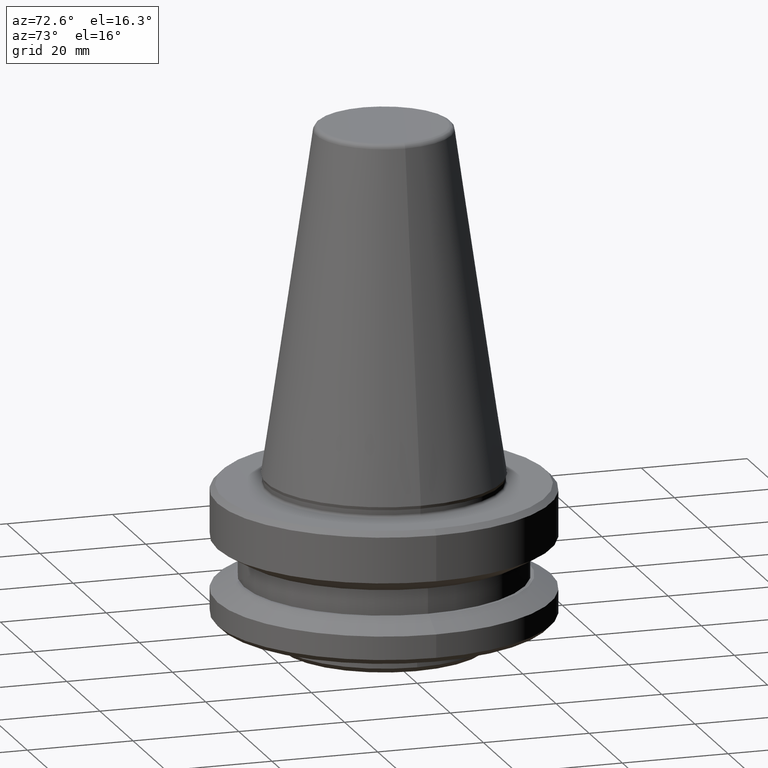
[diagram: clean part render]
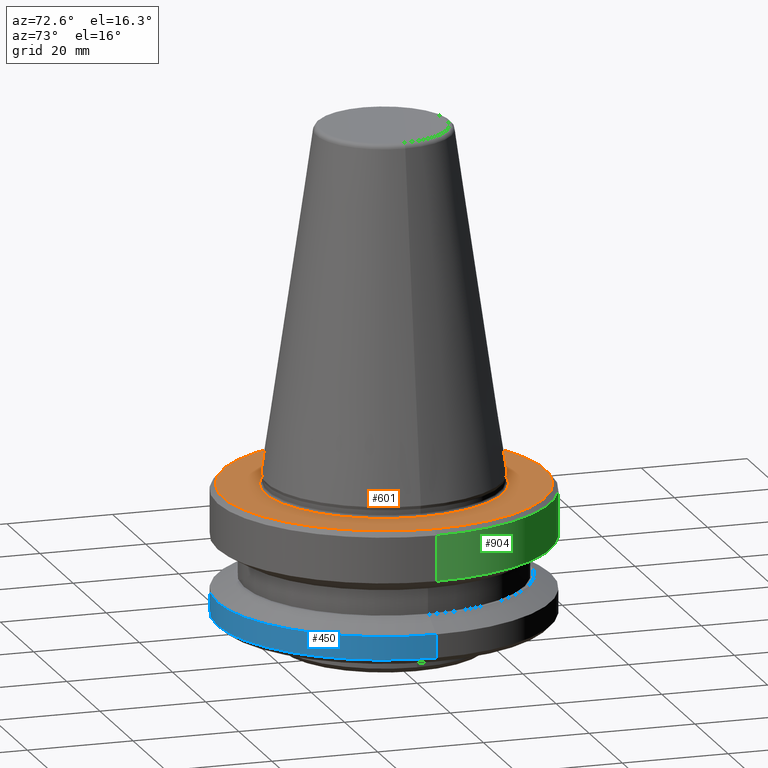
[diagram: same view with three faces highlighted in distinct colors, each labeled with its STEP entity id]
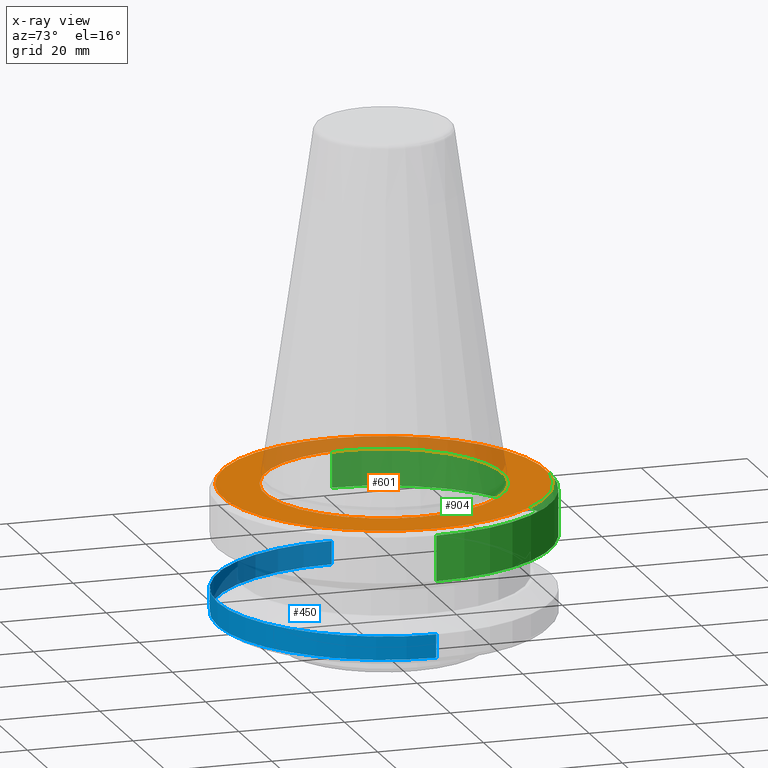
[diagram: x-ray of the same camera — body ghosted, the three highlighted faces saturated]
A machine part, auxiliary view with three faces highlighted in distinct colors.
The next image is the same camera in x-ray (body ghosted, the three faces saturated) — at least one of them is partly hidden behind the body in this view.
Their STEP definitions:

[orange] entity #601 — the highlighted planar face has unit normal (0, 0, -1).
#54 = CIRCLE ( 'NONE', #998, 30.49999999999997200 ) ;
#89 = DIRECTION ( 'NONE',  ( -1.000000000000000000, 0.0000000000000000000, -0.0000000000000000000 ) ) ;
#96 = DIRECTION ( 'NONE',  ( -0.0000000000000000000, -0.0000000000000000000, 1.000000000000000000 ) ) ;
#108 = EDGE_CURVE ( 'NONE', #842, #318, #975, .T. ) ;
#113 = VERTEX_POINT ( 'NONE', #758 ) ;
#134 = CARTESIAN_POINT ( 'NONE',  ( 0.0000000000000000000, 0.0000000000000000000, -2.000000000001556100 ) ) ;
#155 = PLANE ( 'NONE',  #737 ) ;
#164 = ORIENTED_EDGE ( 'NONE', *, *, #108, .F. ) ;
#225 = DIRECTION ( 'NONE',  ( 1.000000000000000000, 0.0000000000000000000, 0.0000000000000000000 ) ) ;
#266 = CARTESIAN_POINT ( 'NONE',  ( 0.0000000000000000000, 0.0000000000000000000, -2.000000000001556100 ) ) ;
#279 = CIRCLE ( 'NONE', #840, 30.49999999999997200 ) ;
#318 = VERTEX_POINT ( 'NONE', #391 ) ;
#330 = DIRECTION ( 'NONE',  ( 1.000000000000000000, 0.0000000000000000000, 0.0000000000000000000 ) ) ;
#387 = EDGE_CURVE ( 'NONE', #318, #842, #882, .T. ) ;
#391 = CARTESIAN_POINT ( 'NONE',  ( 22.49999999999996400, 0.0000000000000000000, -2.000000000001500600 ) ) ;
#422 = DIRECTION ( 'NONE',  ( -0.0000000000000000000, -0.0000000000000000000, 1.000000000000000000 ) ) ;
#458 = ORIENTED_EDGE ( 'NONE', *, *, #673, .T. ) ;
#477 = EDGE_LOOP ( 'NONE', ( #614, #164 ) ) ;
#479 = CARTESIAN_POINT ( 'NONE',  ( 0.0000000000000000000, 0.0000000000000000000, -2.000000000001556100 ) ) ;
#542 = DIRECTION ( 'NONE',  ( 0.0000000000000000000, 0.0000000000000000000, -1.000000000000000000 ) ) ;
#554 = AXIS2_PLACEMENT_3D ( 'NONE', #479, #605, #623 ) ;
#567 = CARTESIAN_POINT ( 'NONE',  ( 0.0000000000000000000, 30.49999999999997200, -2.000000000001556100 ) ) ;
#601 = ADVANCED_FACE ( 'NONE', ( #923, #895 ), #155, .F. ) ;
#605 = DIRECTION ( 'NONE',  ( -0.0000000000000000000, -0.0000000000000000000, 1.000000000000000000 ) ) ;
#608 = AXIS2_PLACEMENT_3D ( 'NONE', #266, #96, #330 ) ;
#614 = ORIENTED_EDGE ( 'NONE', *, *, #387, .F. ) ;
#623 = DIRECTION ( 'NONE',  ( 1.000000000000000000, 0.0000000000000000000, 0.0000000000000000000 ) ) ;
#624 = DIRECTION ( 'NONE',  ( -0.0000000000000000000, -0.0000000000000000000, 1.000000000000000000 ) ) ;
#673 = EDGE_CURVE ( 'NONE', #113, #844, #279, .T. ) ;
#701 = EDGE_LOOP ( 'NONE', ( #458, #916 ) ) ;
#711 = CARTESIAN_POINT ( 'NONE',  ( 0.0000000000000000000, 0.0000000000000000000, -2.000000000001556100 ) ) ;
#725 = EDGE_CURVE ( 'NONE', #844, #113, #54, .T. ) ;
#737 = AXIS2_PLACEMENT_3D ( 'NONE', #567, #542, #89 ) ;
#742 = CARTESIAN_POINT ( 'NONE',  ( 30.49999999999997200, 3.796405077356798300E-015, -2.000000000001556100 ) ) ;
#758 = CARTESIAN_POINT ( 'NONE',  ( -30.49999999999997200, 0.0000000000000000000, -2.000000000001556100 ) ) ;
#764 = CARTESIAN_POINT ( 'NONE',  ( -22.49999999999996400, 2.755455298081540400E-015, -2.000000000001500600 ) ) ;
#840 = AXIS2_PLACEMENT_3D ( 'NONE', #134, #422, #225 ) ;
#842 = VERTEX_POINT ( 'NONE', #764 ) ;
#844 = VERTEX_POINT ( 'NONE', #742 ) ;
#880 = DIRECTION ( 'NONE',  ( 1.000000000000000000, 0.0000000000000000000, 0.0000000000000000000 ) ) ;
#882 = CIRCLE ( 'NONE', #554, 22.49999999999996400 ) ;
#895 = FACE_OUTER_BOUND ( 'NONE', #701, .T. ) ;
#916 = ORIENTED_EDGE ( 'NONE', *, *, #725, .T. ) ;
#923 = FACE_BOUND ( 'NONE', #477, .T. ) ;
#975 = CIRCLE ( 'NONE', #608, 22.49999999999996400 ) ;
#998 = AXIS2_PLACEMENT_3D ( 'NONE', #711, #624, #880 ) ;

[blue] entity #450 — the highlighted cylindrical surface (partial cylindrical patch) has radius 31.5 mm, axis along (-0, -0, 1).
#4 = VECTOR ( 'NONE', #241, 1000.000000000000000 ) ;
#30 = LINE ( 'NONE', #798, #4 ) ;
#77 = CARTESIAN_POINT ( 'NONE',  ( 31.49999915511100200, 0.0000000000000000000, -21.60014278253921600 ) ) ;
#112 = DIRECTION ( 'NONE',  ( -0.0000000000000000000, -0.0000000000000000000, 1.000000000000000000 ) ) ;
#161 = CARTESIAN_POINT ( 'NONE',  ( -31.49999915511100200, 3.857637313845101900E-015, -26.00000000000535000 ) ) ;
#181 = ORIENTED_EDGE ( 'NONE', *, *, #546, .F. ) ;
#232 = CARTESIAN_POINT ( 'NONE',  ( 0.0000000000000000000, 0.0000000000000000000, -21.60014278253921600 ) ) ;
#239 = CIRCLE ( 'NONE', #805, 31.49999915511100200 ) ;
#241 = DIRECTION ( 'NONE',  ( -0.0000000000000000000, -0.0000000000000000000, 1.000000000000000000 ) ) ;
#307 = DIRECTION ( 'NONE',  ( 1.000000000000000000, 0.0000000000000000000, 0.0000000000000000000 ) ) ;
#316 = CARTESIAN_POINT ( 'NONE',  ( -31.49999915511100200, 3.857637313845101900E-015, 102.7767479270557900 ) ) ;
#378 = VECTOR ( 'NONE', #112, 1000.000000000000000 ) ;
#383 = DIRECTION ( 'NONE',  ( -0.0000000000000000000, -0.0000000000000000000, 1.000000000000000000 ) ) ;
#389 = DIRECTION ( 'NONE',  ( 1.000000000000000000, 0.0000000000000000000, 0.0000000000000000000 ) ) ;
#431 = CYLINDRICAL_SURFACE ( 'NONE', #862, 31.49999915511100200 ) ;
#450 = ADVANCED_FACE ( 'NONE', ( #452 ), #431, .T. ) ;
#452 = FACE_OUTER_BOUND ( 'NONE', #489, .T. ) ;
#465 = EDGE_CURVE ( 'NONE', #973, #482, #239, .T. ) ;
#469 = EDGE_CURVE ( 'NONE', #806, #870, #631, .T. ) ;
#482 = VERTEX_POINT ( 'NONE', #77 ) ;
#489 = EDGE_LOOP ( 'NONE', ( #181, #607, #792, #942 ) ) ;
#546 = EDGE_CURVE ( 'NONE', #806, #973, #563, .T. ) ;
#563 = LINE ( 'NONE', #316, #378 ) ;
#603 = AXIS2_PLACEMENT_3D ( 'NONE', #729, #692, #854 ) ;
#607 = ORIENTED_EDGE ( 'NONE', *, *, #469, .T. ) ;
#631 = CIRCLE ( 'NONE', #603, 31.49999915511100200 ) ;
#692 = DIRECTION ( 'NONE',  ( -0.0000000000000000000, -0.0000000000000000000, 1.000000000000000000 ) ) ;
#705 = CARTESIAN_POINT ( 'NONE',  ( 31.49999915511100200, 0.0000000000000000000, -26.00000000000535000 ) ) ;
#729 = CARTESIAN_POINT ( 'NONE',  ( 0.0000000000000000000, 0.0000000000000000000, -26.00000000000535000 ) ) ;
#776 = EDGE_CURVE ( 'NONE', #870, #482, #30, .T. ) ;
#792 = ORIENTED_EDGE ( 'NONE', *, *, #776, .T. ) ;
#798 = CARTESIAN_POINT ( 'NONE',  ( 31.49999915511100200, 0.0000000000000000000, 102.7767479270557900 ) ) ;
#805 = AXIS2_PLACEMENT_3D ( 'NONE', #232, #383, #307 ) ;
#806 = VERTEX_POINT ( 'NONE', #161 ) ;
#854 = DIRECTION ( 'NONE',  ( 1.000000000000000000, 0.0000000000000000000, 0.0000000000000000000 ) ) ;
#862 = AXIS2_PLACEMENT_3D ( 'NONE', #920, #999, #389 ) ;
#870 = VERTEX_POINT ( 'NONE', #705 ) ;
#920 = CARTESIAN_POINT ( 'NONE',  ( 0.0000000000000000000, 0.0000000000000000000, 102.7767479270557900 ) ) ;
#942 = ORIENTED_EDGE ( 'NONE', *, *, #465, .F. ) ;
#950 = CARTESIAN_POINT ( 'NONE',  ( -31.49999915511100200, 3.857637313845101900E-015, -21.60014278253921600 ) ) ;
#973 = VERTEX_POINT ( 'NONE', #950 ) ;
#999 = DIRECTION ( 'NONE',  ( -0.0000000000000000000, -0.0000000000000000000, 1.000000000000000000 ) ) ;

[green] entity #904 — the highlighted cylindrical surface (partial cylindrical patch) has radius 31.5 mm, axis along (-0, -0, 1).
#6 = EDGE_CURVE ( 'NONE', #342, #223, #177, .T. ) ;
#8 = DIRECTION ( 'NONE',  ( -0.0000000000000000000, -0.0000000000000000000, 1.000000000000000000 ) ) ;
#151 = CARTESIAN_POINT ( 'NONE',  ( -31.50000000000008500, 3.857637417314172900E-015, 102.7767479270557900 ) ) ;
#153 = ORIENTED_EDGE ( 'NONE', *, *, #159, .T. ) ;
#159 = EDGE_CURVE ( 'NONE', #403, #223, #541, .T. ) ;
#160 = LINE ( 'NONE', #245, #568 ) ;
#163 = ORIENTED_EDGE ( 'NONE', *, *, #6, .F. ) ;
#177 = CIRCLE ( 'NONE', #296, 31.50000000000008500 ) ;
#194 = DIRECTION ( 'NONE',  ( -0.0000000000000000000, -0.0000000000000000000, 1.000000000000000000 ) ) ;
#205 = CARTESIAN_POINT ( 'NONE',  ( -31.50000000000008500, 3.857637417314172900E-015, -3.000000000001446000 ) ) ;
#223 = VERTEX_POINT ( 'NONE', #205 ) ;
#245 = CARTESIAN_POINT ( 'NONE',  ( 31.50000000000008500, 0.0000000000000000000, 102.7767479270557900 ) ) ;
#269 = AXIS2_PLACEMENT_3D ( 'NONE', #369, #8, #379 ) ;
#274 = VERTEX_POINT ( 'NONE', #788 ) ;
#275 = CARTESIAN_POINT ( 'NONE',  ( 0.0000000000000000000, 0.0000000000000000000, 102.7767479270557900 ) ) ;
#296 = AXIS2_PLACEMENT_3D ( 'NONE', #508, #194, #852 ) ;
#300 = ORIENTED_EDGE ( 'NONE', *, *, #540, .T. ) ;
#321 = CARTESIAN_POINT ( 'NONE',  ( 31.50000000000008500, 0.0000000000000000000, -3.000000000001446000 ) ) ;
#342 = VERTEX_POINT ( 'NONE', #321 ) ;
#359 = CYLINDRICAL_SURFACE ( 'NONE', #822, 31.50000000000008500 ) ;
#369 = CARTESIAN_POINT ( 'NONE',  ( 0.0000000000000000000, 0.0000000000000000000, -11.59985799368445900 ) ) ;
#379 = DIRECTION ( 'NONE',  ( 1.000000000000000000, 0.0000000000000000000, 0.0000000000000000000 ) ) ;
#403 = VERTEX_POINT ( 'NONE', #649 ) ;
#508 = CARTESIAN_POINT ( 'NONE',  ( 0.0000000000000000000, 0.0000000000000000000, -3.000000000001446000 ) ) ;
#514 = DIRECTION ( 'NONE',  ( 1.000000000000000000, 0.0000000000000000000, 0.0000000000000000000 ) ) ;
#540 = EDGE_CURVE ( 'NONE', #274, #403, #760, .T. ) ;
#541 = LINE ( 'NONE', #151, #761 ) ;
#568 = VECTOR ( 'NONE', #659, 1000.000000000000000 ) ;
#649 = CARTESIAN_POINT ( 'NONE',  ( -31.50000000000008500, 3.857637417314172900E-015, -11.59985799368445900 ) ) ;
#659 = DIRECTION ( 'NONE',  ( -0.0000000000000000000, -0.0000000000000000000, 1.000000000000000000 ) ) ;
#698 = FACE_OUTER_BOUND ( 'NONE', #808, .T. ) ;
#731 = DIRECTION ( 'NONE',  ( -0.0000000000000000000, -0.0000000000000000000, 1.000000000000000000 ) ) ;
#760 = CIRCLE ( 'NONE', #269, 31.50000000000008500 ) ;
#761 = VECTOR ( 'NONE', #945, 1000.000000000000000 ) ;
#788 = CARTESIAN_POINT ( 'NONE',  ( 31.50000000000008500, 0.0000000000000000000, -11.59985799368445900 ) ) ;
#808 = EDGE_LOOP ( 'NONE', ( #300, #153, #163, #968 ) ) ;
#822 = AXIS2_PLACEMENT_3D ( 'NONE', #275, #731, #514 ) ;
#852 = DIRECTION ( 'NONE',  ( 1.000000000000000000, 0.0000000000000000000, 0.0000000000000000000 ) ) ;
#904 = ADVANCED_FACE ( 'NONE', ( #698 ), #359, .T. ) ;
#933 = EDGE_CURVE ( 'NONE', #274, #342, #160, .T. ) ;
#945 = DIRECTION ( 'NONE',  ( -0.0000000000000000000, -0.0000000000000000000, 1.000000000000000000 ) ) ;
#968 = ORIENTED_EDGE ( 'NONE', *, *, #933, .F. ) ;